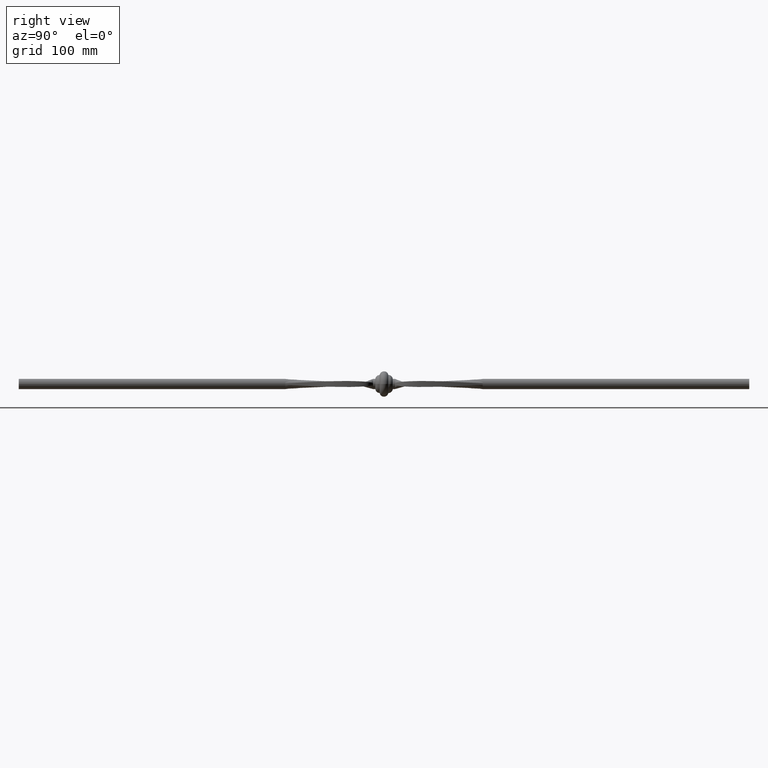
[diagram: clean part render]
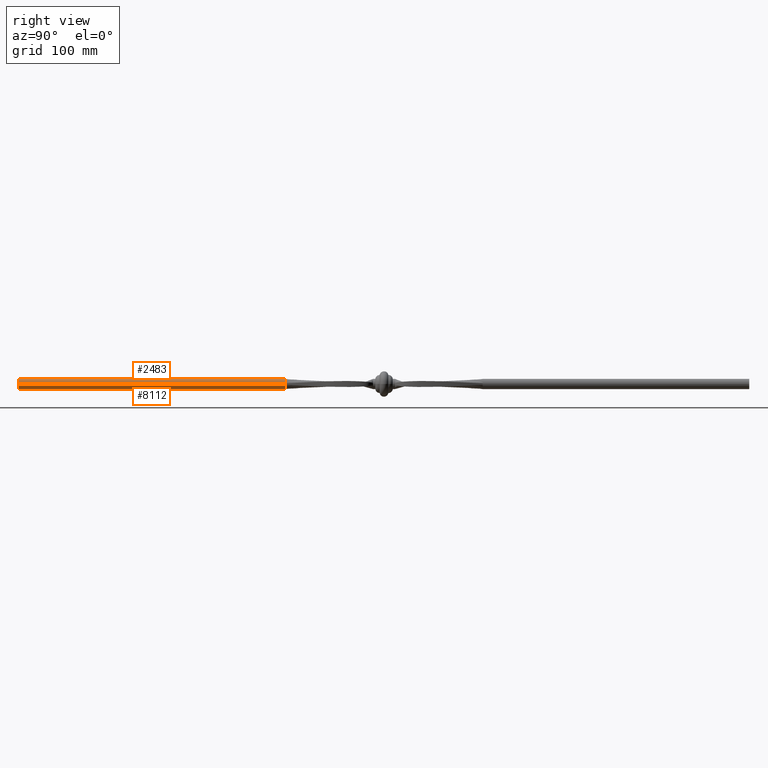
[diagram: same view with one multi-face feature highlighted, each face labeled with its STEP entity id]
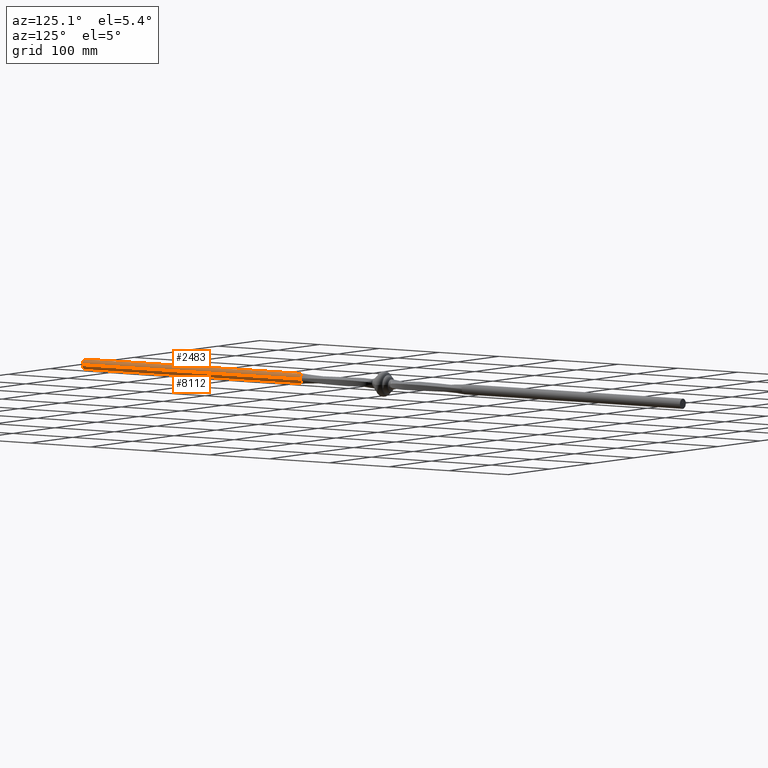
[diagram: same view with one multi-face feature highlighted, each face labeled with its STEP entity id]
A machine part, right view. The highlighted faces form ONE feature: a constant-radius fillet chain: 2 tangent blend faces with common blend radius 7 mm. The faces share edges in the B-rep.
A second angle (auxiliary view) of the same feature is appended — it is thin or edge-on in the first view.
Their STEP definitions:
[1] entity #8112 (Cylinder):
#119 = CIRCLE ( 'NONE', #3251, 7.000000000000000000 ) ;
#213 = DIRECTION ( 'NONE',  ( 0.000000000000000000, 0.000000000000000000, 1.000000000000000000 ) ) ;
#660 = ORIENTED_EDGE ( 'NONE', *, *, #5724, .F. ) ;
#674 = EDGE_CURVE ( 'NONE', #7722, #7921, #6734, .T. ) ;
#853 = CARTESIAN_POINT ( 'NONE',  ( -1.580753865833050075E-12, -500.0000000000000000, 0.000000000000000000 ) ) ;
#977 = CARTESIAN_POINT ( 'NONE',  ( -4.268035437749235970E-13, -134.9999999999999716, 0.000000000000000000 ) ) ;
#1172 = CARTESIAN_POINT ( 'NONE',  ( 6.856823732074786015, -135.0000000000000000, -1.411699209520931309 ) ) ;
#1528 = DIRECTION ( 'NONE',  ( 3.161507731666100645E-15, 1.000000000000000000, -0.000000000000000000 ) ) ;
#1797 = ORIENTED_EDGE ( 'NONE', *, *, #674, .T. ) ;
#1857 = DIRECTION ( 'NONE',  ( 3.161507731666100645E-15, 1.000000000000000000, -0.000000000000000000 ) ) ;
#2081 = CIRCLE ( 'NONE', #9001, 7.000000000000000000 ) ;
#2380 = DIRECTION ( 'NONE',  ( 3.161507731666100645E-15, 1.000000000000000000, -0.000000000000000000 ) ) ;
#2642 = AXIS2_PLACEMENT_3D ( 'NONE', #9018, #4411, #8985 ) ;
#3071 = EDGE_CURVE ( 'NONE', #7747, #7722, #6118, .T. ) ;
#3141 = EDGE_CURVE ( 'NONE', #9671, #7921, #119, .T. ) ;
#3183 = ORIENTED_EDGE ( 'NONE', *, *, #3141, .F. ) ;
#3251 = AXIS2_PLACEMENT_3D ( 'NONE', #977, #1857, #7167 ) ;
#3717 = CARTESIAN_POINT ( 'NONE',  ( 6.999999999998355982, -519.7989898732233769, 8.572527594031472204E-16 ) ) ;
#3959 = CYLINDRICAL_SURFACE ( 'NONE', #2642, 6.999999999999999112 ) ;
#4374 = ORIENTED_EDGE ( 'NONE', *, *, #3071, .T. ) ;
#4411 = DIRECTION ( 'NONE',  ( 3.161507731666100251E-15, 1.000000000000000000, -0.000000000000000000 ) ) ;
#4455 = CARTESIAN_POINT ( 'NONE',  ( -7.000000000001579181, -500.0000000000000000, 0.000000000000000000 ) ) ;
#5120 = EDGE_CURVE ( 'NONE', #7685, #9671, #5597, .T. ) ;
#5189 = DIRECTION ( 'NONE',  ( 3.161507731666100251E-15, 1.000000000000000000, -0.000000000000000000 ) ) ;
#5562 = CARTESIAN_POINT ( 'NONE',  ( -6.999998736978672476, -134.9999999999999716, 7.623268213561217940E-15 ) ) ;
#5597 = CIRCLE ( 'NONE', #7848, 7.000000000000000000 ) ;
#5669 = DIRECTION ( 'NONE',  ( -1.000000000000000000, 3.965082230804130614E-15, 0.000000000000000000 ) ) ;
#5695 = AXIS2_PLACEMENT_3D ( 'NONE', #853, #9329, #213 ) ;
#5724 = EDGE_CURVE ( 'NONE', #7971, #7685, #2081, .T. ) ;
#5891 = VECTOR ( 'NONE', #5189, 1000.000000000000000 ) ;
#6118 = CIRCLE ( 'NONE', #5695, 6.999999999999999112 ) ;
#6119 = CARTESIAN_POINT ( 'NONE',  ( -7.000000000001643130, -519.7989898732233769, 0.000000000000000000 ) ) ;
#6428 = EDGE_CURVE ( 'NONE', #7747, #7971, #8642, .T. ) ;
#6432 = CARTESIAN_POINT ( 'NONE',  ( 6.999998736977818936, -135.0000000000000284, 1.706007480942853602E-15 ) ) ;
#6611 = VECTOR ( 'NONE', #8339, 1000.000000000000000 ) ;
#6701 = EDGE_LOOP ( 'NONE', ( #8580, #4374, #1797, #3183, #7579, #660 ) ) ;
#6734 = LINE ( 'NONE', #6119, #6611 ) ;
#7167 = DIRECTION ( 'NONE',  ( -1.000000000000000000, 3.965082230804130614E-15, 0.000000000000000000 ) ) ;
#7579 = ORIENTED_EDGE ( 'NONE', *, *, #5120, .F. ) ;
#7668 = CARTESIAN_POINT ( 'NONE',  ( 6.999999999998419042, -500.0000000000000000, 8.572527594031472204E-16 ) ) ;
#7685 = VERTEX_POINT ( 'NONE', #1172 ) ;
#7722 = VERTEX_POINT ( 'NONE', #4455 ) ;
#7747 = VERTEX_POINT ( 'NONE', #7668 ) ;
#7848 = AXIS2_PLACEMENT_3D ( 'NONE', #8290, #1528, #9042 ) ;
#7921 = VERTEX_POINT ( 'NONE', #5562 ) ;
#7971 = VERTEX_POINT ( 'NONE', #6432 ) ;
#8112 = ADVANCED_FACE ( 'NONE', ( #8296 ), #3959, .T. ) ;
#8290 = CARTESIAN_POINT ( 'NONE',  ( -4.268035437749235970E-13, -134.9999999999999716, 0.000000000000000000 ) ) ;
#8296 = FACE_OUTER_BOUND ( 'NONE', #6701, .T. ) ;
#8339 = DIRECTION ( 'NONE',  ( 3.161507731666100251E-15, 1.000000000000000000, -0.000000000000000000 ) ) ;
#8470 = CARTESIAN_POINT ( 'NONE',  ( -4.268035437749235970E-13, -134.9999999999999716, 0.000000000000000000 ) ) ;
#8580 = ORIENTED_EDGE ( 'NONE', *, *, #6428, .F. ) ;
#8642 = LINE ( 'NONE', #3717, #5891 ) ;
#8985 = DIRECTION ( 'NONE',  ( -1.000000000000000000, 0.000000000000000000, 0.000000000000000000 ) ) ;
#9001 = AXIS2_PLACEMENT_3D ( 'NONE', #8470, #2380, #5669 ) ;
#9018 = CARTESIAN_POINT ( 'NONE',  ( -1.643348525396424710E-12, -519.7989898732233769, 0.000000000000000000 ) ) ;
#9042 = DIRECTION ( 'NONE',  ( -1.000000000000000000, 3.965082230804130614E-15, 0.000000000000000000 ) ) ;
#9329 = DIRECTION ( 'NONE',  ( 0.000000000000000000, 1.000000000000000000, 0.000000000000000000 ) ) ;
#9671 = VERTEX_POINT ( 'NONE', #9841 ) ;
#9841 = CARTESIAN_POINT ( 'NONE',  ( -6.856844249121687440, -134.9999999999999432, -1.411703331054624977 ) ) ;
[2] entity #2483 (Cylinder):
#550 = CARTESIAN_POINT ( 'NONE',  ( -4.268035437749235970E-13, -134.9999999999999716, 0.000000000000000000 ) ) ;
#578 = AXIS2_PLACEMENT_3D ( 'NONE', #9617, #2151, #3880 ) ;
#674 = EDGE_CURVE ( 'NONE', #7722, #7921, #6734, .T. ) ;
#776 = ORIENTED_EDGE ( 'NONE', *, *, #6428, .T. ) ;
#992 = CIRCLE ( 'NONE', #7012, 7.000000000000000000 ) ;
#993 = DIRECTION ( 'NONE',  ( 0.000000000000000000, 0.000000000000000000, 1.000000000000000000 ) ) ;
#1639 = EDGE_CURVE ( 'NONE', #2448, #8235, #2761, .T. ) ;
#2061 = EDGE_CURVE ( 'NONE', #8235, #7971, #5756, .T. ) ;
#2090 = DIRECTION ( 'NONE',  ( 3.161507731666100645E-15, 1.000000000000000000, -0.000000000000000000 ) ) ;
#2151 = DIRECTION ( 'NONE',  ( 3.161507731666100251E-15, 1.000000000000000000, -0.000000000000000000 ) ) ;
#2422 = CIRCLE ( 'NONE', #9114, 6.999999999999999112 ) ;
#2448 = VERTEX_POINT ( 'NONE', #6656 ) ;
#2483 = ADVANCED_FACE ( 'NONE', ( #4912 ), #6957, .T. ) ;
#2514 = CARTESIAN_POINT ( 'NONE',  ( 6.856862221467370233, -135.0000000000000000, 1.411707075175663295 ) ) ;
#2614 = AXIS2_PLACEMENT_3D ( 'NONE', #6864, #9135, #5350 ) ;
#2682 = EDGE_LOOP ( 'NONE', ( #9657, #776, #4283, #7852, #8342, #7731 ) ) ;
#2761 = CIRCLE ( 'NONE', #2614, 7.000000000000000000 ) ;
#3117 = DIRECTION ( 'NONE',  ( -1.000000000000000000, 3.965082230804130614E-15, 0.000000000000000000 ) ) ;
#3717 = CARTESIAN_POINT ( 'NONE',  ( 6.999999999998355982, -519.7989898732233769, 8.572527594031472204E-16 ) ) ;
#3880 = DIRECTION ( 'NONE',  ( -1.000000000000000000, 0.000000000000000000, 0.000000000000000000 ) ) ;
#3896 = CARTESIAN_POINT ( 'NONE',  ( -4.268035437749235970E-13, -134.9999999999999716, 0.000000000000000000 ) ) ;
#4283 = ORIENTED_EDGE ( 'NONE', *, *, #2061, .F. ) ;
#4455 = CARTESIAN_POINT ( 'NONE',  ( -7.000000000001579181, -500.0000000000000000, 0.000000000000000000 ) ) ;
#4912 = FACE_OUTER_BOUND ( 'NONE', #2682, .T. ) ;
#5189 = DIRECTION ( 'NONE',  ( 3.161507731666100251E-15, 1.000000000000000000, -0.000000000000000000 ) ) ;
#5350 = DIRECTION ( 'NONE',  ( -1.000000000000000000, 3.965082230804130614E-15, 0.000000000000000000 ) ) ;
#5562 = CARTESIAN_POINT ( 'NONE',  ( -6.999998736978672476, -134.9999999999999716, 7.623268213561217940E-15 ) ) ;
#5756 = CIRCLE ( 'NONE', #8974, 7.000000000000000000 ) ;
#5891 = VECTOR ( 'NONE', #5189, 1000.000000000000000 ) ;
#6119 = CARTESIAN_POINT ( 'NONE',  ( -7.000000000001643130, -519.7989898732233769, 0.000000000000000000 ) ) ;
#6168 = EDGE_CURVE ( 'NONE', #7921, #2448, #992, .T. ) ;
#6310 = CARTESIAN_POINT ( 'NONE',  ( -1.580753865833050075E-12, -500.0000000000000000, 0.000000000000000000 ) ) ;
#6343 = DIRECTION ( 'NONE',  ( 0.000000000000000000, 1.000000000000000000, 0.000000000000000000 ) ) ;
#6428 = EDGE_CURVE ( 'NONE', #7747, #7971, #8642, .T. ) ;
#6432 = CARTESIAN_POINT ( 'NONE',  ( 6.999998736977818936, -135.0000000000000284, 1.706007480942853602E-15 ) ) ;
#6611 = VECTOR ( 'NONE', #8339, 1000.000000000000000 ) ;
#6656 = CARTESIAN_POINT ( 'NONE',  ( -6.856841665811181485, -134.9999999999999432, 1.411702947447297962 ) ) ;
#6734 = LINE ( 'NONE', #6119, #6611 ) ;
#6864 = CARTESIAN_POINT ( 'NONE',  ( -4.268035437749235970E-13, -134.9999999999999716, 0.000000000000000000 ) ) ;
#6957 = CYLINDRICAL_SURFACE ( 'NONE', #578, 6.999999999999999112 ) ;
#7012 = AXIS2_PLACEMENT_3D ( 'NONE', #3896, #7723, #3117 ) ;
#7341 = DIRECTION ( 'NONE',  ( -1.000000000000000000, 3.965082230804130614E-15, 0.000000000000000000 ) ) ;
#7567 = EDGE_CURVE ( 'NONE', #7722, #7747, #2422, .T. ) ;
#7668 = CARTESIAN_POINT ( 'NONE',  ( 6.999999999998419042, -500.0000000000000000, 8.572527594031472204E-16 ) ) ;
#7722 = VERTEX_POINT ( 'NONE', #4455 ) ;
#7723 = DIRECTION ( 'NONE',  ( 3.161507731666100645E-15, 1.000000000000000000, -0.000000000000000000 ) ) ;
#7731 = ORIENTED_EDGE ( 'NONE', *, *, #674, .F. ) ;
#7747 = VERTEX_POINT ( 'NONE', #7668 ) ;
#7852 = ORIENTED_EDGE ( 'NONE', *, *, #1639, .F. ) ;
#7921 = VERTEX_POINT ( 'NONE', #5562 ) ;
#7971 = VERTEX_POINT ( 'NONE', #6432 ) ;
#8235 = VERTEX_POINT ( 'NONE', #2514 ) ;
#8339 = DIRECTION ( 'NONE',  ( 3.161507731666100251E-15, 1.000000000000000000, -0.000000000000000000 ) ) ;
#8342 = ORIENTED_EDGE ( 'NONE', *, *, #6168, .F. ) ;
#8642 = LINE ( 'NONE', #3717, #5891 ) ;
#8974 = AXIS2_PLACEMENT_3D ( 'NONE', #550, #2090, #7341 ) ;
#9114 = AXIS2_PLACEMENT_3D ( 'NONE', #6310, #6343, #993 ) ;
#9135 = DIRECTION ( 'NONE',  ( 3.161507731666100645E-15, 1.000000000000000000, -0.000000000000000000 ) ) ;
#9617 = CARTESIAN_POINT ( 'NONE',  ( -1.643348525396424710E-12, -519.7989898732233769, 0.000000000000000000 ) ) ;
#9657 = ORIENTED_EDGE ( 'NONE', *, *, #7567, .T. ) ;